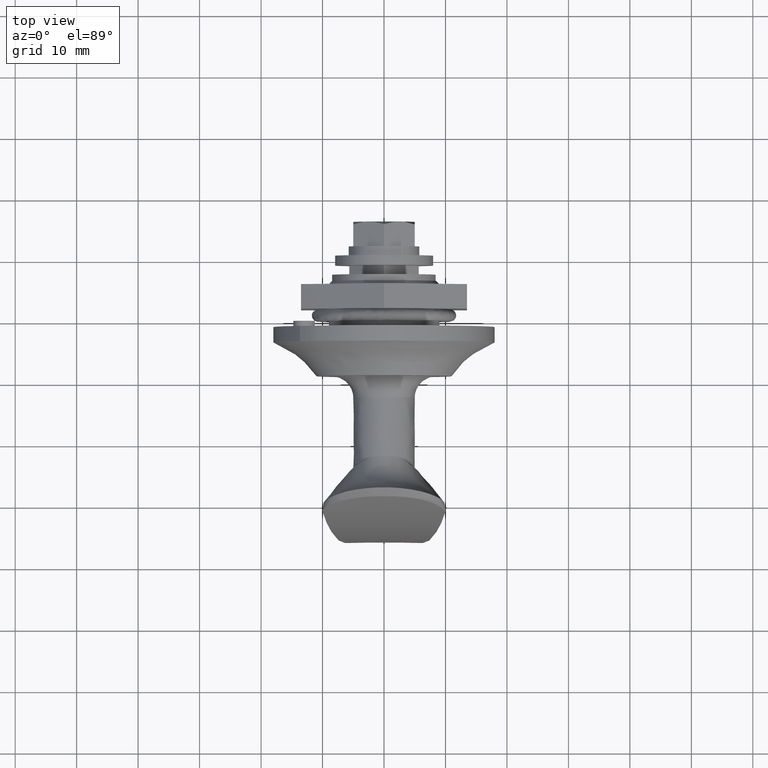
[diagram: clean part render]
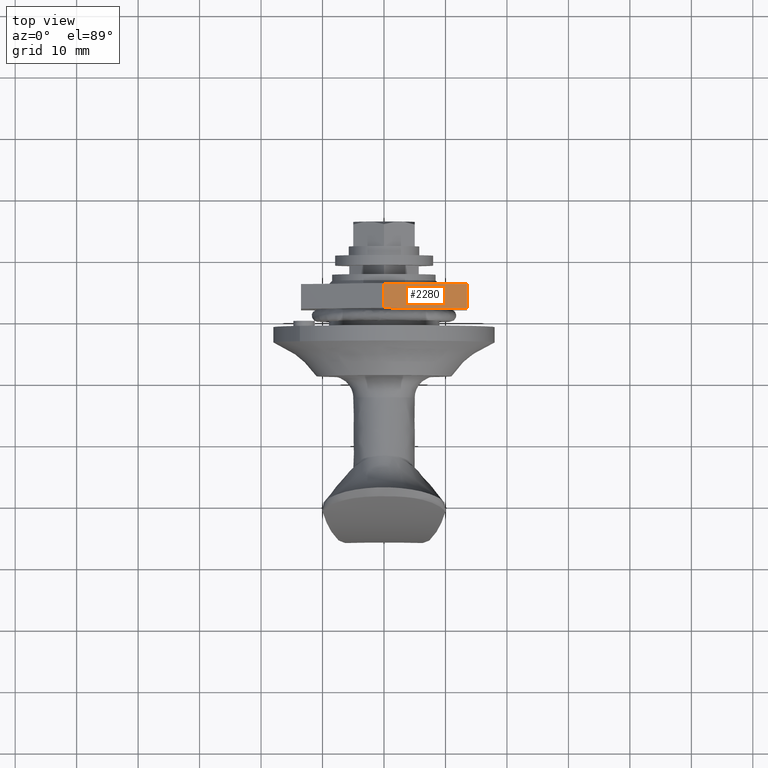
[diagram: same view with one face highlighted and labeled with its STEP entity id]
A machine part, top view. The second image highlights one B-rep face of the part: STEP entity #2280.
In plain terms, the highlighted face is a freeform B-spline surface patch.
Its self-contained STEP definition (entity closure, byte-faithful):
#2120=CARTESIAN_POINT('',(10.866025403784439,0.0,15.589000000000000));
#2121=VERTEX_POINT('',#2120);
#2127=CARTESIAN_POINT('',(14.866025403784461,0.0,15.589000000000000));
#2128=VERTEX_POINT('',#2127);
#2129=CARTESIAN_POINT('',(14.866025403784461,0.0,15.589000000000000));
#2130=CARTESIAN_POINT('',(10.866025403784439,0.0,15.589000000000000));
#2131=QUASI_UNIFORM_CURVE('',1,(#2129,#2130),.UNSPECIFIED.,.F.,.U.);
#2132=EDGE_CURVE('',#2128,#2121,#2131,.T.);
#2238=CARTESIAN_POINT('',(10.866025403784439,-13.500000000000000,7.793999999999800));
#2239=VERTEX_POINT('',#2238);
#2246=CARTESIAN_POINT('',(14.866025403784461,-13.500000000000000,7.793999999999800));
#2247=VERTEX_POINT('',#2246);
#2253=CARTESIAN_POINT('',(14.866025403784461,-13.500000000000000,7.793999999999800));
#2254=CARTESIAN_POINT('',(10.866025403784439,-13.500000000000000,7.793999999999800));
#2255=QUASI_UNIFORM_CURVE('',1,(#2253,#2254),.UNSPECIFIED.,.F.,.U.);
#2256=EDGE_CURVE('',#2247,#2239,#2255,.T.);
#2261=CARTESIAN_POINT('',(10.666224989529180,-14.174324973834420,7.404639765108080));
#2262=CARTESIAN_POINT('',(10.666224989529180,0.674325335932600,15.978360443969979));
#2263=CARTESIAN_POINT('',(15.065824923970050,-14.174324973834420,7.404639765108080));
#2264=CARTESIAN_POINT('',(15.065824923970050,0.674325335932600,15.978360443969979));
#2265=B_SPLINE_SURFACE_WITH_KNOTS('',1,1,((#2261,#2263),(#2262,#2264)),.UNSPECIFIED.,.F.,.F.,.U.,(2,2),(2,2),(0.0,17.146168735344009),(0.0,4.399599934440877),.UNSPECIFIED.);
#2266=CARTESIAN_POINT('',(10.866025403784439,0.0,15.589000000000000));
#2267=CARTESIAN_POINT('',(10.866025403784439,-13.500000000000000,7.793999999999800));
#2268=QUASI_UNIFORM_CURVE('',1,(#2266,#2267),.UNSPECIFIED.,.F.,.U.);
#2269=EDGE_CURVE('',#2121,#2239,#2268,.T.);
#2270=ORIENTED_EDGE('',*,*,#2269,.T.);
#2271=ORIENTED_EDGE('',*,*,#2256,.F.);
#2272=CARTESIAN_POINT('',(14.866025403784461,0.0,15.589000000000000));
#2273=CARTESIAN_POINT('',(14.866025403784461,-13.500000000000000,7.793999999999800));
#2274=QUASI_UNIFORM_CURVE('',1,(#2272,#2273),.UNSPECIFIED.,.F.,.U.);
#2275=EDGE_CURVE('',#2128,#2247,#2274,.T.);
#2276=ORIENTED_EDGE('',*,*,#2275,.F.);
#2277=ORIENTED_EDGE('',*,*,#2132,.T.);
#2278=EDGE_LOOP('',(#2270,#2271,#2276,#2277));
#2279=FACE_OUTER_BOUND('',#2278,.T.);
#2280=ADVANCED_FACE('',(#2279),#2265,.F.);